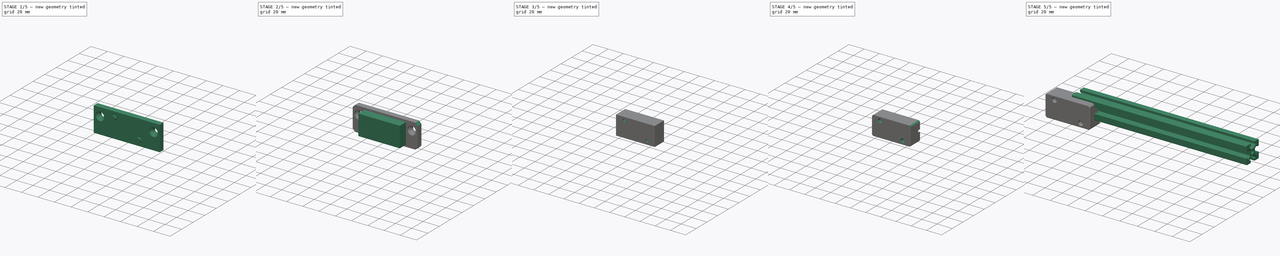
[diagram: build sequence overview — one tinted view per stage of 5, left to right]
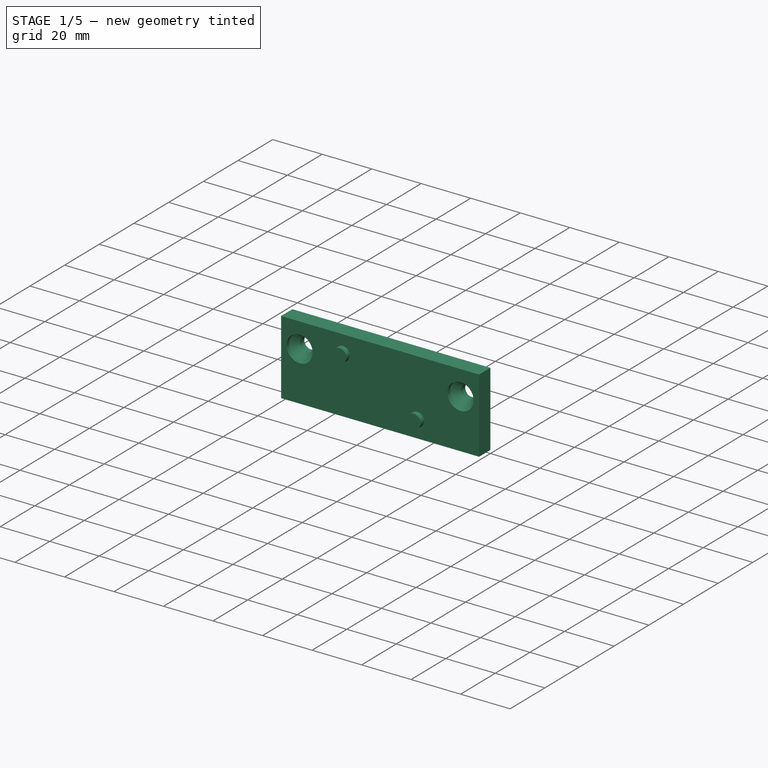
[diagram: stage 1 of 5 — iso view after this stage's code; geometry added in this stage tinted green]
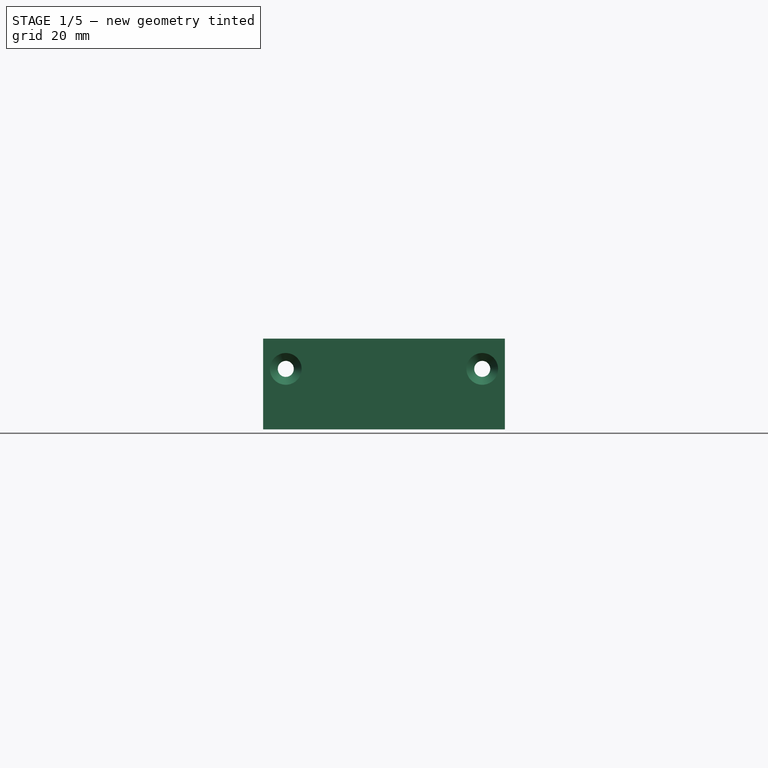
[diagram: stage 1 of 5 — front view after this stage's code; geometry added in this stage tinted green]
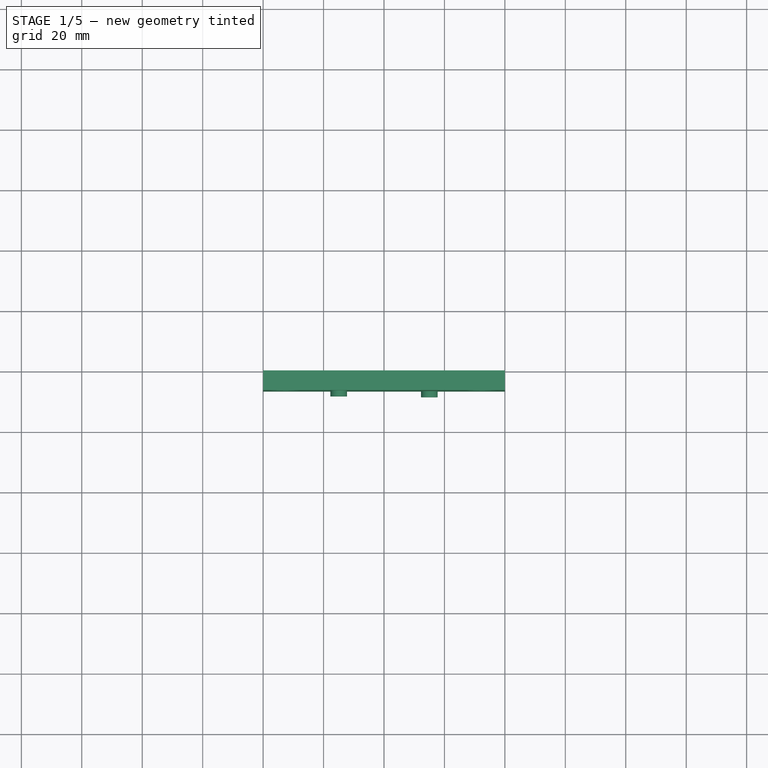
[diagram: stage 1 of 5 — top view after this stage's code; geometry added in this stage tinted green]
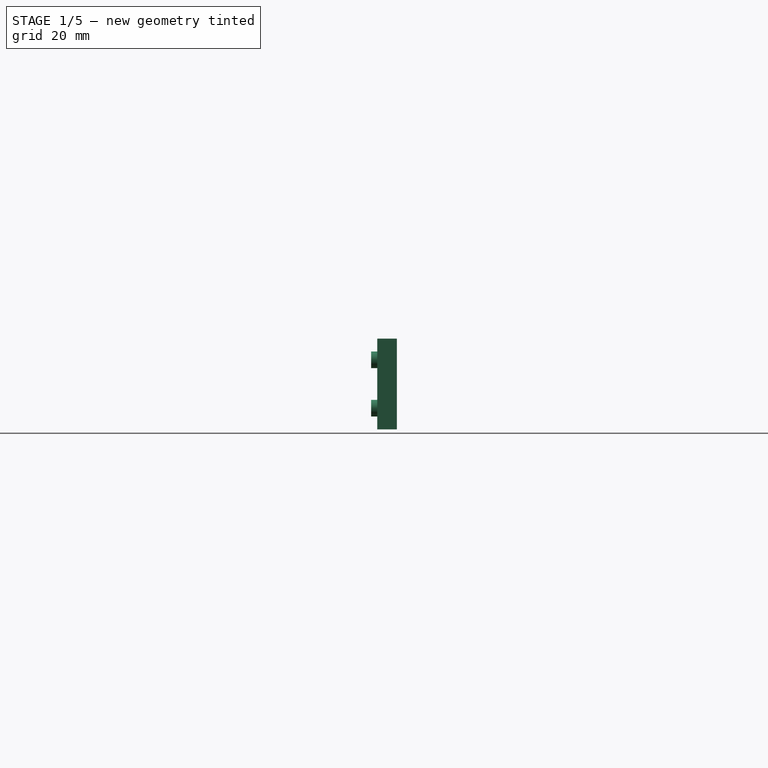
[diagram: stage 1 of 5 — right view after this stage's code; geometry added in this stage tinted green]
FCSTD DOCUMENT  (FreeCAD 0.18R16158 (Git))
Label: lm2596_mount
License: All rights reserved
LicenseURL: http://en.wikipedia.org/wiki/All_rights_reserved
objects: Sketcher::SketchObject×25, PartDesign::Pocket×13, PartDesign::Pad×11, Part::Feature×6, PartDesign::Chamfer×6, PartDesign::Body×4, App::Part×3, PartDesign::ShapeBinder×3, PartDesign::Mirrored×2, PartDesign::PolarPattern×1, PartDesign::FeatureBase×1, PartDesign::Hole×1
note: 98 computed .brp shape members not serialized (recipe doc carries the construction recipe); baked Part::Feature solids carry a one-line shape summary decoded from their .brp

FEATURE [PartDesign::Body] Body001  label="2020_bottom"
  BaseFeature = -> Body
  Group = -> [Clone]
  Origin = -> Origin002
  Placement = pos=(-100,0,-76) rot=(0,0,1;0rad)
  Tip = -> Clone
FEATURE [App::Part] Part  label="3018"
  Group = -> [Body,Body001]
  Origin = -> Origin
FEATURE [Part::Feature] Part__Feature  label="Board v5"
  Placement = pos=(21.5,-9.73272,-11.3327) rot=(1,0,0;1.5708rad)
  shape: bbox 43 x 21 x 1.7 mm, 395 faces (baked)
FEATURE [Part::Feature] Part__Feature001  label="Trimpot 3296W v1"
  Placement = pos=(6.96,7.27228,-9.73272) rot=(0,0,1;3.14159rad)
  shape: bbox 9.53 x 4.83 x 14.15 mm, 96 faces (baked)
FEATURE [Part::Feature] Part__Feature002  label="CDRH127_470M v1"
  Placement = pos=(5.645,-2.88272,-9.74272) rot=(0,0,-1;1.5708rad)
  shape: bbox 12.31 x 12.77 x 7.426 mm, 258 faces, 6 solids (baked)
FEATURE [Part::Feature] Part__Feature003  label="CAPSMD220-35 v1"
  Placement = pos=(17.2399,1.02456,-9.73272) rot=(0,0,1;1.5708rad)
  shape: bbox 8.659 x 9 x 39.03 mm, 183 faces (baked)
FEATURE [Part::Feature] Part__Feature004  label="CAPSMD100-50 v1"
  Placement = pos=(-16.85,0.747284,-9.73272) rot=(0,0,1;1.5708rad)
  shape: bbox 8.659 x 9 x 39.03 mm, 169 faces (baked)
FEATURE [Part::Feature] Part__Feature005  label="TO-263BA v2"
  Placement = pos=(-10.4,-3.43272,-9.73272) rot=(0,0,1;0rad)
  shape: bbox 10.65 x 15.86 x 4.815 mm, 299 faces, 7 solids (baked)
FEATURE [App::Part] LM2596_DC_DC_StepDown_Converter_v1  label="LM2596 module"
  Group = -> [Part__Feature,Part__Feature001,Part__Feature002,Part__Feature003,Part__Feature004,Part__Feature005]
  Origin = -> Origin003
  Placement = pos=(0,-29.88,-5.77) rot=(1,0,0;1.5708rad)
FEATURE [Sketcher::SketchObject] Sketch003
  MapMode = 5
  Placement = pos=(0,0,0) rot=(1,0,0;1.5708rad)
  Support = -> [XZ_Plane005]
  sketch-geometry (4):
    g0: LineSegment StartX=-40 StartY=10 StartZ=0 EndX=40 EndY=10 EndZ=0
    g1: LineSegment StartX=40 StartY=10 StartZ=0 EndX=40 EndY=-20 EndZ=0
    g2: LineSegment StartX=40 StartY=-20 StartZ=0 EndX=-40 EndY=-20 EndZ=0
    g3: LineSegment StartX=-40 StartY=-20 StartZ=0 EndX=-40 EndY=10 EndZ=0
  constraints (11):
    c: Coincident(g0,g1)
    c: Coincident(g1,g2)
    c: Coincident(g2,g3)
    c: Coincident(g3,g0)
    c: Horizontal(g2)
    c: Vertical(g3)
    c: Symmetric(g0,g0,g-2)
    c: DistanceX(g0,g0) = 80
    c: DistanceY(g-1,g0) = 10
    c: DistanceY(g1,g1) = 30
    c: Vertical(g1)
FEATURE [PartDesign::Pad] Pad001
  Length = 6.5
  Length2 = 100
  Placement = pos=(0,0,0) rot=(1,0,0;1.5708rad)
  Profile = -> Sketch003
  Refine = true
  Type = 0
FEATURE [Sketcher::SketchObject] Sketch004
  ExternalGeometry = -> [Pad001]
  MapMode = 5
  Placement = pos=(0,-6.5,4.3e-15) rot=(1,0,0;1.5708rad)
  Support = -> [Pad001]
  sketch-geometry (1):
    g0: Circle CenterX=-32.5 CenterY=0 CenterZ=0 NormalX=0 NormalY=0 NormalZ=1 AngleXU=0 Radius=5.25
  constraints (3):
    c: PointOnObject(g0,g-1)
    c: Diameter(g0) = 10.5
    c: DistanceX(g-3,g0) = 7.5
FEATURE [PartDesign::Pocket] Pocket002
  BaseFeature = -> Pad001
  Length = 1.5
  Length2 = 100
  Placement = pos=(0,0,0) rot=(1,0,0;1.5708rad)
  Profile = -> Sketch004
  Refine = true
  Type = 0
FEATURE [PartDesign::Mirrored] Mirrored
  BaseFeature = -> Pocket002
  MirrorPlane = -> Sketch004 [V_Axis]
  Originals = -> [Pocket002]
  Placement = pos=(0,0,0) rot=(1,0,0;1.5708rad)
  Refine = true
FEATURE [Sketcher::SketchObject] Sketch005
  ExternalGeometry = -> [Mirrored]
  MapMode = 5
  Placement = pos=(0,-5,6.1e-15) rot=(1,0,0;1.5708rad)
  Support = -> [Mirrored]
  sketch-geometry (1):
    g0: Circle CenterX=-32.5 CenterY=0 CenterZ=0 NormalX=0 NormalY=0 NormalZ=1 AngleXU=0 Radius=2.5
  constraints (2):
    c: Coincident(g0,g-3)
    c: Diameter(g0) = 5
FEATURE [PartDesign::Hole] Hole
  BaseFeature = -> Mirrored
  Depth = 25
  DepthType = 1
  Diameter = 5.3
  DrillPoint = 1
  DrillPointAngle = 118
  HoleCutCountersinkAngle = 90
  HoleCutDepth = 0
  HoleCutDiameter = 10.5
  HoleCutType = 2
  ModelActualThread = false
  Placement = pos=(0,0,0) rot=(1,0,0;1.5708rad)
  Profile = -> Sketch005
  Refine = true
  Tapered = false
  TaperedAngle = 90
  ThreadAngle = 0
  ThreadClass = 0
  ThreadCutOffInner = 0
  ThreadCutOffOuter = 0
  ThreadDirection = 0
  ThreadFit = 0
  ThreadPitch = 0
  ThreadSize = 0
  ThreadType = 0
  Threaded = false
FEATURE [PartDesign::Mirrored] Mirrored001
  BaseFeature = -> Hole
  MirrorPlane = -> Sketch005 [V_Axis]
  Originals = -> [Hole]
  Placement = pos=(0,0,0) rot=(1,0,0;1.5708rad)
  Refine = true
FEATURE [PartDesign::ShapeBinder] ShapeBinder
  Placement = pos=(0,-19.88,-5.77) rot=(1,0,0;1.5708rad)
  Support = -> [Part__Feature]
  TraceSupport = true
FEATURE [Sketcher::SketchObject] Sketch006
  ExternalGeometry = -> [ShapeBinder]
  MapMode = 5
  Placement = pos=(0,-6.5,1.01e-14) rot=(1,0,0;1.5708rad)
  Support = -> [Mirrored001]
  sketch-geometry (1):
    g0: Circle CenterX=-15 CenterY=2.99728 CenterZ=0 NormalX=0 NormalY=0 NormalZ=1 AngleXU=0 Radius=2.75
  constraints (2):
    c: Coincident(g0,g-3)
    c: Diameter(g0) = 5.5
FEATURE [PartDesign::Pad] Pad002
  BaseFeature = -> Mirrored001
  Length = 10
  Length2 = 100
  Placement = pos=(0,0,0) rot=(1,0,0;1.5708rad)
  Profile = -> Sketch006
  Refine = true
  Type = 3
  UpToFace = -> ShapeBinder [Face1]
FEATURE [Sketcher::SketchObject] Sketch007
  ExternalGeometry = -> [ShapeBinder,Pad002]
  MapMode = 5
  Placement = pos=(0,-6.5,1.3e-14) rot=(1,0,0;1.5708rad)
  Support = -> [Pad002]
  sketch-geometry (1):
    g0: Circle CenterX=15 CenterY=-13.0027 CenterZ=0 NormalX=0 NormalY=0 NormalZ=1 AngleXU=0 Radius=2.75
  constraints (2):
    c: Coincident(g0,g-3)
    c: Equal(g-4,g0)
FEATURE [PartDesign::Pad] Pad003
  BaseFeature = -> Pad002
  Length = 10
  Length2 = 100
  Placement = pos=(0,0,0) rot=(1,0,0;1.5708rad)
  Profile = -> Sketch007
  Refine = true
  Type = 3
  UpToFace = -> Pad002 [Face14]
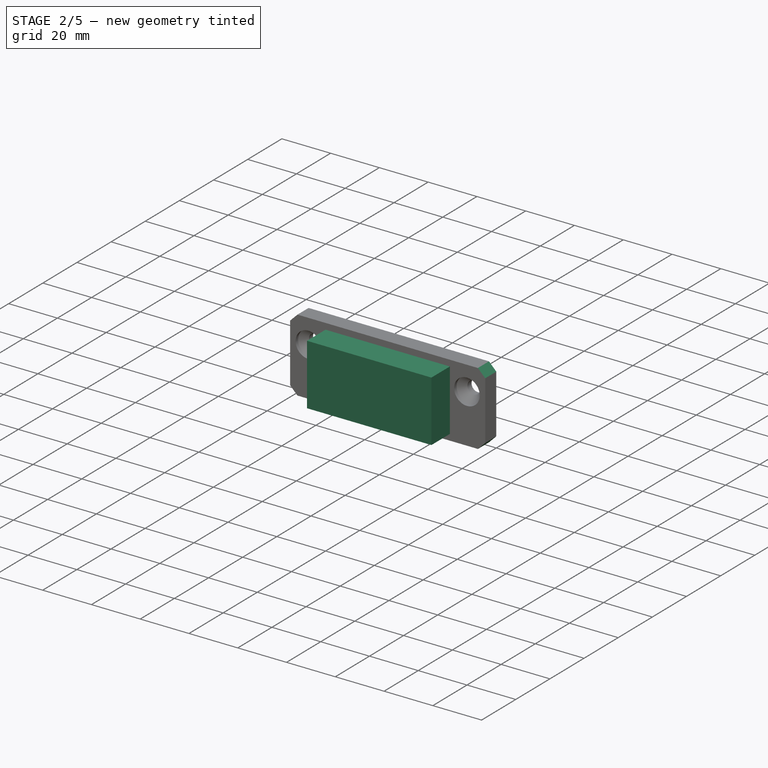
[diagram: stage 2 of 5 — iso view after this stage's code; geometry added in this stage tinted green]
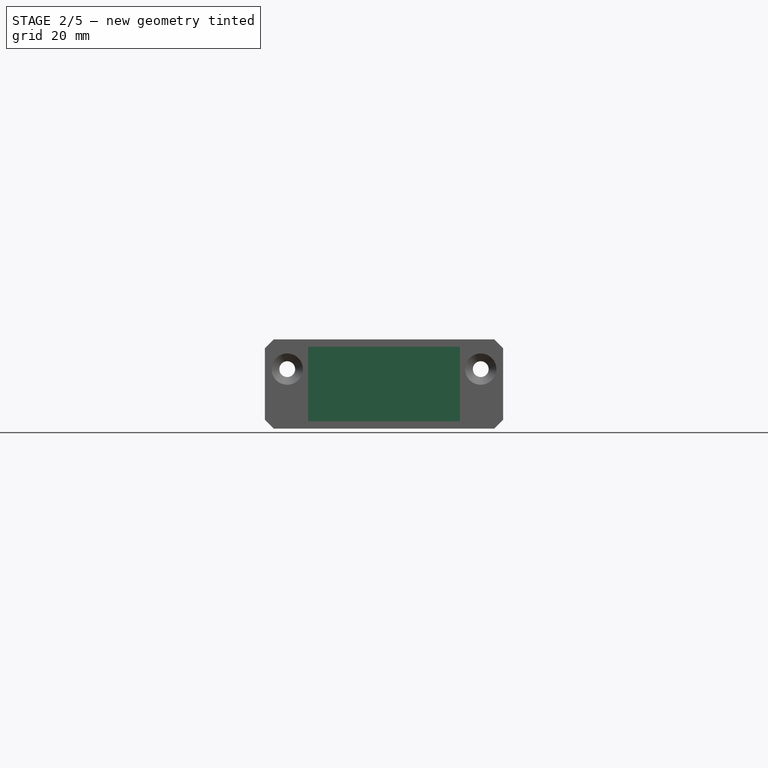
[diagram: stage 2 of 5 — front view after this stage's code; geometry added in this stage tinted green]
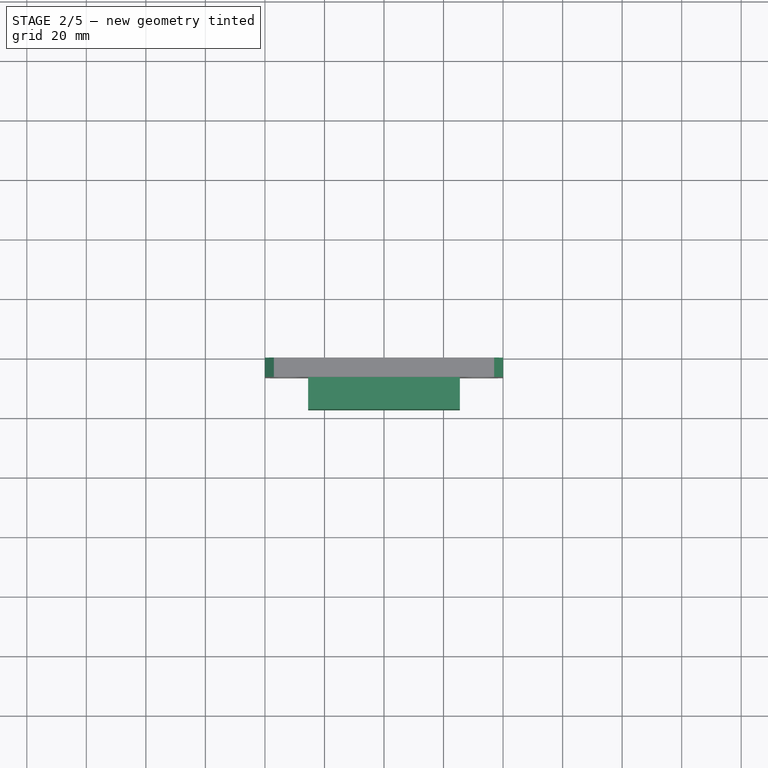
[diagram: stage 2 of 5 — top view after this stage's code; geometry added in this stage tinted green]
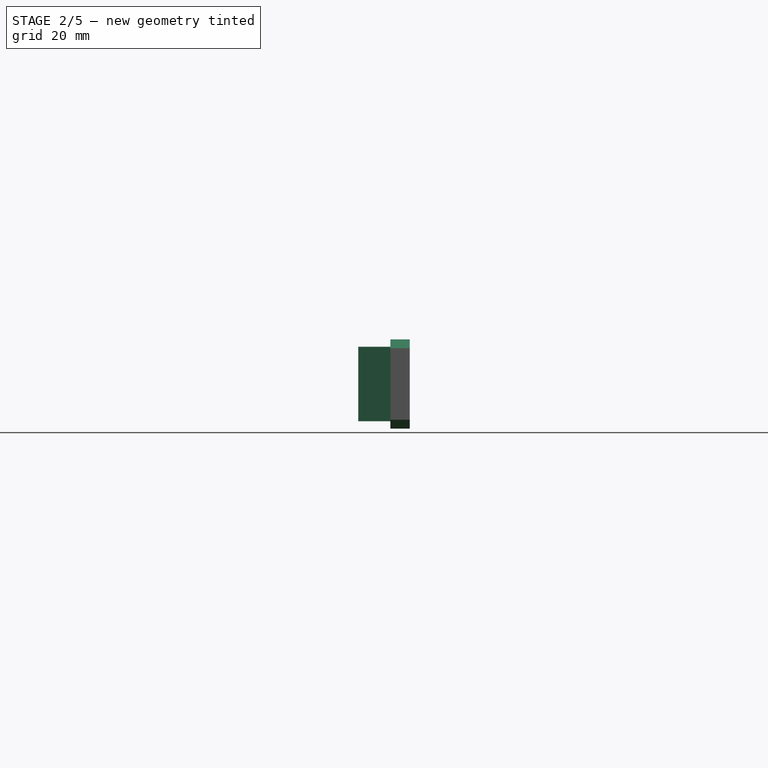
[diagram: stage 2 of 5 — right view after this stage's code; geometry added in this stage tinted green]
FEATURE [Sketcher::SketchObject] Sketch008
  ExternalGeometry = -> [Pad003]
  MapMode = 5
  Placement = pos=(0,-8.49728,-1.9e-15) rot=(1,0,0;1.5708rad)
  Support = -> [Pad003]
  sketch-geometry (1):
    g0: Circle CenterX=-15 CenterY=2.99728 CenterZ=0 NormalX=0 NormalY=0 NormalZ=1 AngleXU=0 Radius=1.65
  constraints (2):
    c: Coincident(g0,g-3)
    c: Diameter(g0) = 3.3
FEATURE [PartDesign::Pocket] Pocket003
  BaseFeature = -> Pad003
  Length = 5
  Length2 = 100
  Placement = pos=(0,0,0) rot=(1,0,0;1.5708rad)
  Profile = -> Sketch008
  Refine = true
  Type = 1
FEATURE [Sketcher::SketchObject] Sketch009
  ExternalGeometry = -> [Pocket003]
  MapMode = 5
  Placement = pos=(0,-8.49728,1.9e-15) rot=(1,0,0;1.5708rad)
  Support = -> [Pocket003]
  sketch-geometry (1):
    g0: Circle CenterX=15 CenterY=-13.0027 CenterZ=0 NormalX=0 NormalY=0 NormalZ=1 AngleXU=0 Radius=1.65
  constraints (2):
    c: Coincident(g0,g-4)
    c: Equal(g0,g-3)
FEATURE [PartDesign::Pocket] Pocket004
  BaseFeature = -> Pocket003
  Length = 5
  Length2 = 100
  Placement = pos=(0,0,0) rot=(1,0,0;1.5708rad)
  Profile = -> Sketch009
  Refine = true
  Type = 1
FEATURE [Sketcher::SketchObject] Sketch010
  ExternalGeometry = -> [Pocket004]
  MapMode = 5
  Placement = pos=(0,0,0) rot=(-1,0,0;1.5708rad)
  Support = -> [Pocket004]
  sketch-geometry (7):
    g0: LineSegment StartX=13.3546 StartY=15.8527 StartZ=0 EndX=11.7091 EndY=13.0027 EndZ=0
    g1: LineSegment StartX=11.7091 StartY=13.0027 StartZ=0 EndX=13.3546 EndY=10.1527 EndZ=0
    g2: LineSegment StartX=13.3546 StartY=10.1527 StartZ=0 EndX=16.6454 EndY=10.1527 EndZ=0
    g3: LineSegment StartX=16.6454 StartY=10.1527 StartZ=0 EndX=18.2909 EndY=13.0027 EndZ=0
    g4: LineSegment StartX=18.2909 StartY=13.0027 StartZ=0 EndX=16.6454 EndY=15.8527 EndZ=0
    g5: LineSegment StartX=16.6454 StartY=15.8527 StartZ=0 EndX=13.3546 EndY=15.8527 EndZ=0
    g6: Circle [constr] CenterX=15 CenterY=13.0027 CenterZ=0 NormalX=0 NormalY=0 NormalZ=1 AngleXU=0 Radius=3.2909
  constraints (16):
    c: Coincident(g0,g1)
    c: Coincident(g1,g2)
    c: Coincident(g2,g3)
    c: Coincident(g3,g4)
    c: Coincident(g4,g5)
    c: Coincident(g5,g0)
    c: Equal(g0, g1-g5) x5
    c: PointOnObject(g0,g6)
    c: PointOnObject(g1,g6)
    c: PointOnObject(g2,g6)
    c: PointOnObject(g3,g6)
    c: PointOnObject(g4,g6)
    c: PointOnObject(g5,g6)
    c: Coincident(g6,g-3)
    c: Horizontal(g5)
    c: DistanceY(g2,g4) = 5.7
FEATURE [PartDesign::Pocket] Pocket005
  BaseFeature = -> Pocket004
  Length = 4
  Length2 = 100
  Placement = pos=(0,0,0) rot=(1,0,0;1.5708rad)
  Profile = -> Sketch010
  Refine = true
  Type = 0
FEATURE [Sketcher::SketchObject] Sketch011
  ExternalGeometry = -> [Pocket005]
  MapMode = 5
  Placement = pos=(0,0,0) rot=(-1,0,0;1.5708rad)
  Support = -> [Pocket005]
  sketch-geometry (7):
    g0: LineSegment StartX=-16.6454 StartY=-0.147284 StartZ=0 EndX=-18.2909 EndY=-2.99728 EndZ=0
    g1: LineSegment StartX=-18.2909 StartY=-2.99728 StartZ=0 EndX=-16.6454 EndY=-5.84728 EndZ=0
    g2: LineSegment StartX=-16.6454 StartY=-5.84728 StartZ=0 EndX=-13.3546 EndY=-5.84728 EndZ=0
    g3: LineSegment StartX=-13.3546 StartY=-5.84728 StartZ=0 EndX=-11.7091 EndY=-2.99728 EndZ=0
    g4: LineSegment StartX=-11.7091 StartY=-2.99728 StartZ=0 EndX=-13.3546 EndY=-0.147284 EndZ=0
    g5: LineSegment StartX=-13.3546 StartY=-0.147284 StartZ=0 EndX=-16.6454 EndY=-0.147284 EndZ=0
    g6: Circle [constr] CenterX=-15 CenterY=-2.99728 CenterZ=0 NormalX=0 NormalY=0 NormalZ=1 AngleXU=0 Radius=3.2909
  constraints (16):
    c: Coincident(g0,g1)
    c: Coincident(g1,g2)
    c: Coincident(g2,g3)
    c: Coincident(g3,g4)
    c: Coincident(g4,g5)
    c: Coincident(g5,g0)
    c: Equal(g0, g1-g5) x5
    c: PointOnObject(g0,g6)
    c: PointOnObject(g1,g6)
    c: PointOnObject(g2,g6)
    c: PointOnObject(g3,g6)
    c: PointOnObject(g4,g6)
    c: PointOnObject(g5,g6)
    c: Coincident(g6,g-3)
    c: Horizontal(g5)
    c: DistanceY(g2,g4) = 5.7
FEATURE [PartDesign::Pocket] Pocket006
  BaseFeature = -> Pocket005
  Length = 4
  Length2 = 100
  Placement = pos=(0,0,0) rot=(1,0,0;1.5708rad)
  Profile = -> Sketch011
  Refine = true
  Type = 0
FEATURE [PartDesign::Chamfer] Chamfer
  Base = -> Pocket006 [Edge14,Edge13,Edge18,Edge17,Edge16,Edge15,Edge21,Edge19,Edge20,Edge22,Edge24,Edge23]
  BaseFeature = -> Pocket006
  Placement = pos=(0,0,0) rot=(1,0,0;1.5708rad)
  Size = 0.5
FEATURE [PartDesign::Chamfer] Chamfer001
  Base = -> Chamfer [Edge32,Edge36,Edge34,Edge31]
  BaseFeature = -> Chamfer
  Placement = pos=(0,0,0) rot=(1,0,0;1.5708rad)
  Size = 3
FEATURE [PartDesign::Body] Body002  label="base"
  Group = -> [Sketch003,Pad001,Sketch004,Pocket002,Mirrored,Sketch005,Hole,Mirrored001,ShapeBinder,Sketch006,Pad002,Sketch007,Pad003,Sketch008,Pocket003,Sketch009,Pocket004,Sketch010,Pocket005,Sketch011,Pocket006,Chamfer,Chamfer001]
  Origin = -> Origin005
  Placement = pos=(0,-10,0) rot=(0,0,1;0rad)
  Tip = -> Chamfer001
FEATURE [PartDesign::ShapeBinder] ShapeBinder001
  Placement = pos=(21.5,-2.04728,-15.5027) rot=(1,0,0;3.14159rad)
  Support = -> [Part__Feature]
  TraceSupport = true
FEATURE [Sketcher::SketchObject] Sketch012
  ExternalGeometry = -> [ShapeBinder001]
  MapMode = 5
  Placement = pos=(0,0,0) rot=(1,0,0;1.5708rad)
  Support = -> [XZ_Plane006]
  sketch-geometry (4):
    g0: LineSegment StartX=-25.5 StartY=7.49728 StartZ=0 EndX=25.5 EndY=7.49728 EndZ=0
    g1: LineSegment StartX=25.5 StartY=7.49728 StartZ=0 EndX=25.5 EndY=-17.5027 EndZ=0
    g2: LineSegment StartX=25.5 StartY=-17.5027 StartZ=0 EndX=-25.5 EndY=-17.5027 EndZ=0
    g3: LineSegment StartX=-25.5 StartY=-17.5027 StartZ=0 EndX=-25.5 EndY=7.49728 EndZ=0
  constraints (12):
    c: Coincident(g0,g1)
    c: Coincident(g1,g2)
    c: Coincident(g2,g3)
    c: Coincident(g3,g0)
    c: Horizontal(g2)
    c: Vertical(g1)
    c: Vertical(g3)
    c: DistanceX(g0,g-3) = 4
    c: DistanceX(g-3,g0) = 4
    c: DistanceY(g-3,g0) = 2
    c: DistanceY(g1,g-4) = 2
    c: Horizontal(g0)
FEATURE [PartDesign::Pad] Pad004
  Length = 17.3
  Length2 = 100
  Placement = pos=(0,0,0) rot=(1,0,0;1.5708rad)
  Profile = -> Sketch012
  Refine = true
  Type = 0
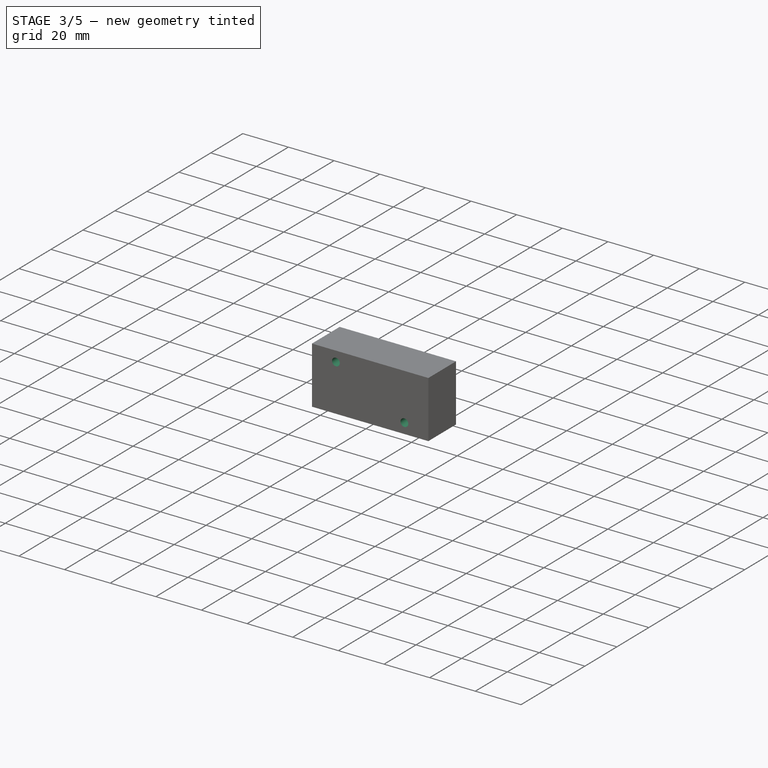
[diagram: stage 3 of 5 — iso view after this stage's code; geometry added in this stage tinted green]
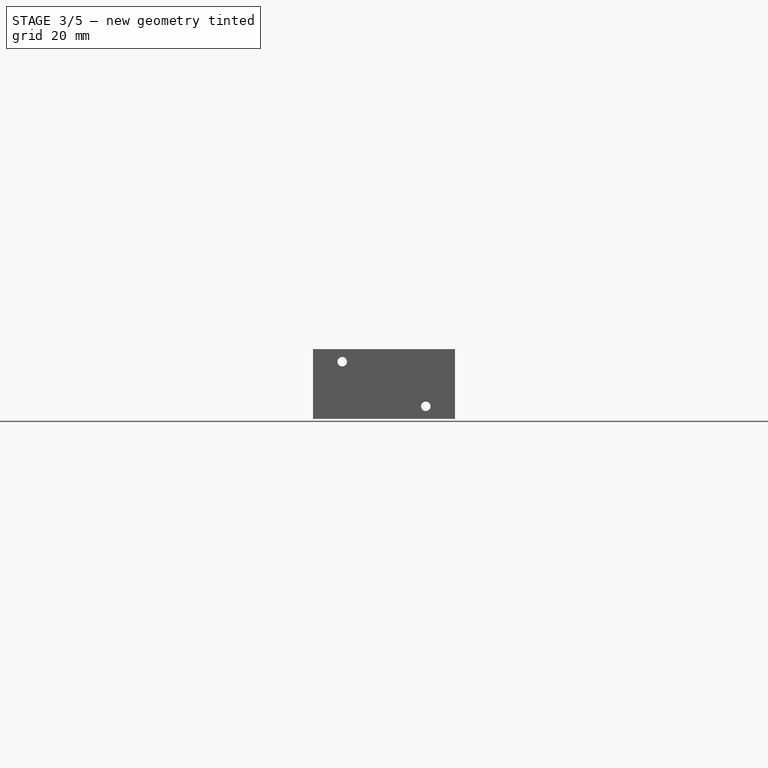
[diagram: stage 3 of 5 — front view after this stage's code; geometry added in this stage tinted green]
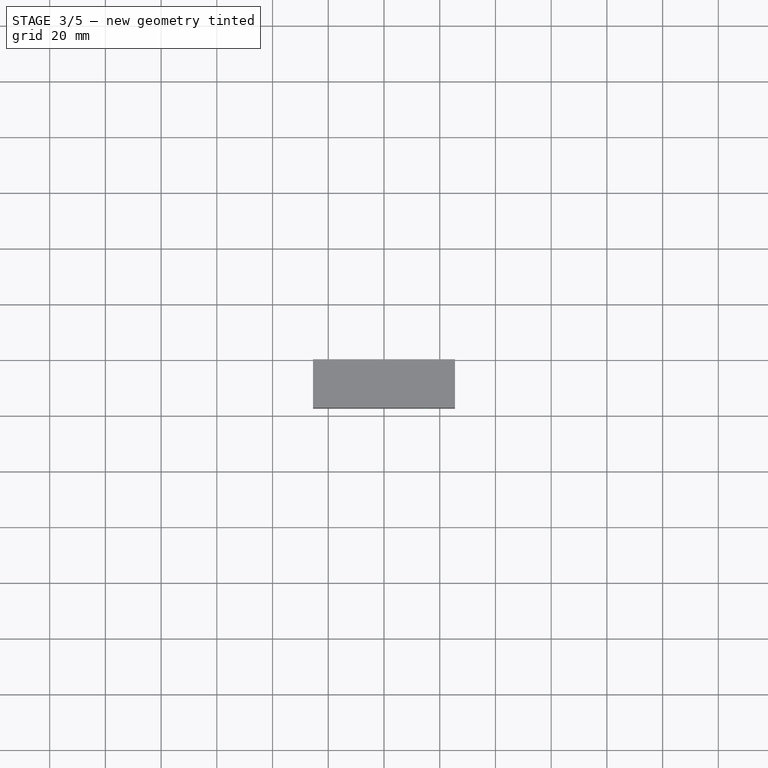
[diagram: stage 3 of 5 — top view after this stage's code; geometry added in this stage tinted green]
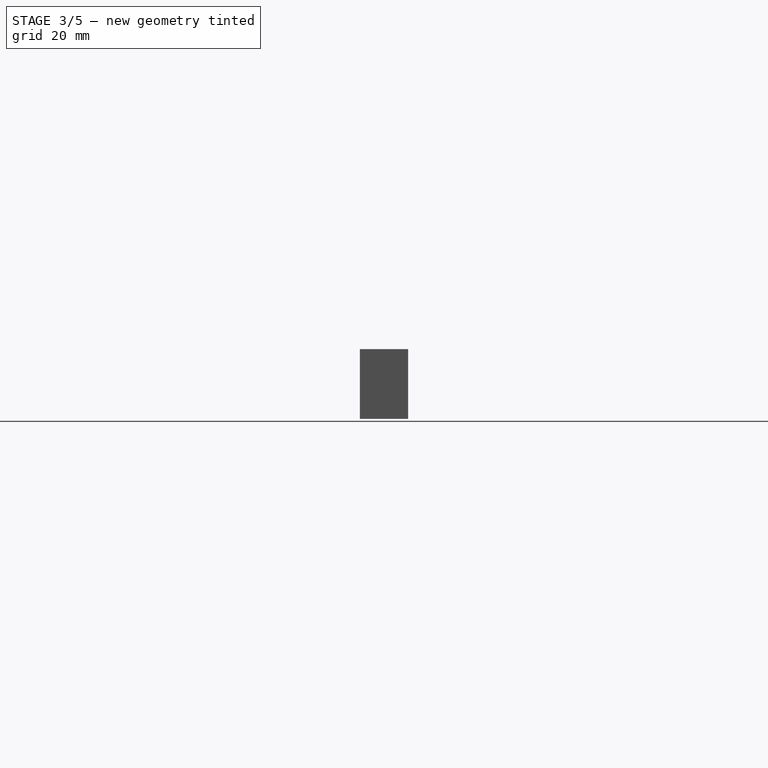
[diagram: stage 3 of 5 — right view after this stage's code; geometry added in this stage tinted green]
FEATURE [Sketcher::SketchObject] Sketch013
  ExternalGeometry = -> [Pad004]
  MapMode = 5
  Placement = pos=(0,0,0) rot=(-1,0,0;1.5708rad)
  Support = -> [Pad004]
  sketch-geometry (4):
    g0: LineSegment StartX=-24.1 StartY=16.1027 StartZ=0 EndX=24.1 EndY=16.1027 EndZ=0
    g1: LineSegment StartX=24.1 StartY=16.1027 StartZ=0 EndX=24.1 EndY=-6.09728 EndZ=0
    g2: LineSegment StartX=24.1 StartY=-6.09728 StartZ=0 EndX=-24.1 EndY=-6.09728 EndZ=0
    g3: LineSegment StartX=-24.1 StartY=-6.09728 StartZ=0 EndX=-24.1 EndY=16.1027 EndZ=0
  constraints (12):
    c: Coincident(g0,g1)
    c: Coincident(g1,g2)
    c: Coincident(g2,g3)
    c: Coincident(g3,g0)
    c: Horizontal(g0)
    c: Horizontal(g2)
    c: Vertical(g1)
    c: Vertical(g3)
    c: DistanceX(g0,g-4) = 1.4
    c: DistanceX(g-6,g0) = 1.4
    c: DistanceY(g0,g-4) = 1.4
    c: DistanceY(g-5,g1) = 1.4
FEATURE [PartDesign::Pocket] Pocket007
  BaseFeature = -> Pad004
  Length = 0
  Length2 = 100
  Offset = -1.4
  Placement = pos=(0,0,0) rot=(1,0,0;1.5708rad)
  Profile = -> Sketch013
  Refine = true
  Type = 3
  UpToFace = -> Pad004 [Face6]
FEATURE [PartDesign::ShapeBinder] ShapeBinder002
  Placement = pos=(0,6.5,0) rot=(0,0,1;0rad)
  Support = -> [Chamfer001]
  TraceSupport = true
FEATURE [Sketcher::SketchObject] Sketch014
  ExternalGeometry = -> [ShapeBinder002,Pocket007]
  MapMode = 5
  Placement = pos=(0,-15.9,1.77e-14) rot=(-1,0,0;1.5708rad)
  Support = -> [Pocket007]
  sketch-geometry (5):
    g0: ArcOfCircle CenterX=15 CenterY=13.0027 CenterZ=0 NormalX=0 NormalY=0 NormalZ=1 AngleXU=0 Radius=2.75 StartAngle=3.14159 EndAngle=6.28319
    g1: LineSegment [constr] StartX=12.25 StartY=13.0027 StartZ=0 EndX=17.75 EndY=13.0027 EndZ=0
    g2: LineSegment StartX=17.75 StartY=13.0027 StartZ=0 EndX=17.75 EndY=16.1027 EndZ=0
    g3: LineSegment StartX=17.75 StartY=16.1027 StartZ=0 EndX=12.25 EndY=16.1027 EndZ=0
    g4: LineSegment StartX=12.25 StartY=16.1027 StartZ=0 EndX=12.25 EndY=13.0027 EndZ=0
  constraints (14):
    c: Coincident(g0,g-3)
    c: Coincident(g1,g2)
    c: Coincident(g2,g3)
    c: Coincident(g3,g4)
    c: Coincident(g4,g1)
    c: Horizontal(g1)
    c: Horizontal(g3)
    c: Vertical(g2)
    c: Vertical(g4)
    c: Coincident(g1,g0)
    c: PointOnObject(g2,g-4)
    c: Coincident(g0,g1)
    c: PointOnObject(g0,g1)
    c: Equal(g-3,g0)
FEATURE [PartDesign::Pad] Pad005
  BaseFeature = -> Pocket007
  Length = 11
  Length2 = 100
  Placement = pos=(0,0,0) rot=(1,0,0;1.5708rad)
  Profile = -> Sketch014
  Refine = true
  Type = 0
FEATURE [Sketcher::SketchObject] Sketch015
  ExternalGeometry = -> [ShapeBinder002,Pad005]
  MapMode = 5
  Placement = pos=(0,-15.9,2.47e-14) rot=(-1,0,0;1.5708rad)
  Support = -> [Pad005]
  sketch-geometry (5):
    g0: ArcOfCircle CenterX=-15 CenterY=-2.99728 CenterZ=0 NormalX=0 NormalY=0 NormalZ=1 AngleXU=0 Radius=2.75 StartAngle=1e-16 EndAngle=3.14159
    g1: LineSegment [constr] StartX=-17.75 StartY=-2.99728 StartZ=0 EndX=-12.25 EndY=-2.99728 EndZ=0
    g2: LineSegment StartX=-12.25 StartY=-2.99728 StartZ=0 EndX=-12.25 EndY=-6.09728 EndZ=0
    g3: LineSegment StartX=-12.25 StartY=-6.09728 StartZ=0 EndX=-17.75 EndY=-6.09728 EndZ=0
    g4: LineSegment StartX=-17.75 StartY=-6.09728 StartZ=0 EndX=-17.75 EndY=-2.99728 EndZ=0
  constraints (14):
    c: Coincident(g0,g-3)
    c: Coincident(g1,g2)
    c: Coincident(g2,g3)
    c: Coincident(g3,g4)
    c: Coincident(g4,g1)
    c: Horizontal(g1)
    c: Horizontal(g3)
    c: Vertical(g2)
    c: Vertical(g4)
    c: Coincident(g1,g0)
    c: PointOnObject(g2,g-4)
    c: Coincident(g0,g2)
    c: PointOnObject(g0,g1)
    c: Equal(g-3,g0)
FEATURE [PartDesign::Pad] Pad006
  BaseFeature = -> Pad005
  Length = 10
  Length2 = 100
  Placement = pos=(0,0,0) rot=(1,0,0;1.5708rad)
  Profile = -> Sketch015
  Refine = true
  Type = 3
  UpToFace = -> Pad005 [Face13]
FEATURE [Sketcher::SketchObject] Sketch016
  ExternalGeometry = -> [Pad006]
  MapMode = 5
  Placement = pos=(0,-4.9,9.2e-15) rot=(-1,0,0;1.5708rad)
  Support = -> [Pad006]
  sketch-geometry (1):
    g0: Circle CenterX=15 CenterY=13.0027 CenterZ=0 NormalX=0 NormalY=0 NormalZ=1 AngleXU=0 Radius=1.7
  constraints (2):
    c: Coincident(g0,g-3)
    c: Diameter(g0) = 3.4
FEATURE [PartDesign::Pocket] Pocket008
  BaseFeature = -> Pad006
  Length = 5
  Length2 = 100
  Placement = pos=(0,0,0) rot=(1,0,0;1.5708rad)
  Profile = -> Sketch016
  Refine = true
  Type = 1
FEATURE [Sketcher::SketchObject] Sketch017
  ExternalGeometry = -> [Pocket008]
  MapMode = 5
  Placement = pos=(0,-4.9,1.14e-14) rot=(-1,0,0;1.5708rad)
  Support = -> [Pocket008]
  sketch-geometry (1):
    g0: Circle CenterX=-15 CenterY=-2.99728 CenterZ=0 NormalX=0 NormalY=0 NormalZ=1 AngleXU=0 Radius=1.7
  constraints (2):
    c: Coincident(g0,g-4)
    c: Equal(g-3,g0)
FEATURE [PartDesign::Pocket] Pocket009
  BaseFeature = -> Pocket008
  Length = 5
  Length2 = 100
  Placement = pos=(0,0,0) rot=(1,0,0;1.5708rad)
  Profile = -> Sketch017
  Refine = true
  Type = 1
FEATURE [Sketcher::SketchObject] Sketch019
  ExternalGeometry = -> [Pocket009]
  MapMode = 5
  Placement = pos=(0,-15.9,4.59e-14) rot=(-1,0,0;1.5708rad)
  Support = -> [Pocket009]
  sketch-geometry (12):
    g0: ArcOfCircle CenterX=-15 CenterY=-2.99728 CenterZ=0 NormalX=0 NormalY=0 NormalZ=1 AngleXU=0 Radius=2.75 StartAngle=0 EndAngle=3.14159
    g1: ArcOfCircle CenterX=-15 CenterY=-2.99728 CenterZ=0 NormalX=0 NormalY=0 NormalZ=1 AngleXU=0 Radius=4 StartAngle=2e-16 EndAngle=3.14159
    g2: LineSegment [constr] StartX=-17.75 StartY=-2.99728 StartZ=0 EndX=-12.25 EndY=-2.99728 EndZ=0
    g3: LineSegment StartX=-12.25 StartY=-2.99728 StartZ=0 EndX=-12.25 EndY=-6.09728 EndZ=0
    g4: LineSegment [constr] StartX=-12.25 StartY=-6.09728 StartZ=0 EndX=-17.75 EndY=-6.09728 EndZ=0
    g5: LineSegment StartX=-17.75 StartY=-6.09728 StartZ=0 EndX=-17.75 EndY=-2.99728 EndZ=0
    g6: LineSegment [constr] StartX=-19 StartY=-2.99728 StartZ=0 EndX=-11 EndY=-2.99728 EndZ=0
    g7: LineSegment StartX=-11 StartY=-2.99728 StartZ=0 EndX=-11 EndY=-6.09728 EndZ=0
    g8: LineSegment [constr] StartX=-11 StartY=-6.09728 StartZ=0 EndX=-19 EndY=-6.09728 EndZ=0
    g9: LineSegment StartX=-19 StartY=-6.09728 StartZ=0 EndX=-19 EndY=-2.99728 EndZ=0
    g10: LineSegment StartX=-19 StartY=-6.09728 StartZ=0 EndX=-17.75 EndY=-6.09728 EndZ=0
    g11: LineSegment StartX=-12.25 StartY=-6.09728 StartZ=0 EndX=-11 EndY=-6.09728 EndZ=0
  constraints (32):
    c: Coincident(g0,g-3)
    c: Coincident(g1,g0)
    c: Coincident(g2,g3)
    c: Coincident(g3,g4)
    c: Coincident(g4,g5)
    c: Coincident(g5,g2)
    c: Horizontal(g2)
    c: Horizontal(g4)
    c: Vertical(g3)
    c: Vertical(g5)
    c: Coincident(g2,g0)
    c: PointOnObject(g3,g-4)
    c: Coincident(g0,g2)
    c: PointOnObject(g0,g2)
    c: Equal(g0,g-3)
    c: Coincident(g6,g7)
    c: Coincident(g7,g8)
    c: Coincident(g8,g9)
    c: Coincident(g9,g6)
    c: Horizontal(g6)
    c: Horizontal(g8)
    c: Vertical(g7)
    c: Vertical(g9)
    c: Coincident(g6,g1)
    c: PointOnObject(g7,g-4)
    c: Coincident(g1,g6)
    c: PointOnObject(g0,g6)
    c: Diameter(g1) = 8
    c: Coincident(g10,g9)
    c: Coincident(g10,g5)
    c: Coincident(g11,g3)
    c: Coincident(g11,g7)
FEATURE [PartDesign::Pad] Pad007
  BaseFeature = -> Pocket009
  Length = 4.2
  Length2 = 100
  Placement = pos=(0,0,0) rot=(1,0,0;1.5708rad)
  Profile = -> Sketch019
  Refine = true
  Type = 0
FEATURE [Sketcher::SketchObject] Sketch020
  ExternalGeometry = -> [Pad007]
  MapMode = 5
  Placement = pos=(0,-15.9,5.3e-14) rot=(-1,0,0;1.5708rad)
  Support = -> [Pad007]
  sketch-geometry (10):
    g0: ArcOfCircle CenterX=15 CenterY=13.0027 CenterZ=0 NormalX=0 NormalY=0 NormalZ=1 AngleXU=0 Radius=2.75 StartAngle=3.14159 EndAngle=6.28319
    g1: ArcOfCircle CenterX=15 CenterY=13.0027 CenterZ=0 NormalX=0 NormalY=0 NormalZ=1 AngleXU=0 Radius=4 StartAngle=3.14159 EndAngle=6.28319
    g2: LineSegment [constr] StartX=12.25 StartY=13.0027 StartZ=0 EndX=17.75 EndY=13.0027 EndZ=0
    g3: LineSegment StartX=17.75 StartY=13.0027 StartZ=0 EndX=17.75 EndY=16.1027 EndZ=0
    g4: LineSegment StartX=12.25 StartY=16.1027 StartZ=0 EndX=12.25 EndY=13.0027 EndZ=0
    g5: LineSegment [constr] StartX=11 StartY=13.0027 StartZ=0 EndX=19 EndY=13.0027 EndZ=0
    g6: LineSegment StartX=19 StartY=13.0027 StartZ=0 EndX=19 EndY=16.1027 EndZ=0
    g7: LineSegment StartX=11 StartY=16.1027 StartZ=0 EndX=11 EndY=13.0027 EndZ=0
    g8: LineSegment StartX=11 StartY=16.1027 StartZ=0 EndX=12.25 EndY=16.1027 EndZ=0
    g9: LineSegment StartX=17.75 StartY=16.1027 StartZ=0 EndX=19 EndY=16.1027 EndZ=0
  constraints (28):
    c: Coincident(g0,g-3)
    c: Coincident(g1,g0)
    c: Coincident(g2,g3)
    c: Coincident(g4,g2)
    c: Horizontal(g2)
    c: Vertical(g3)
    c: Vertical(g4)
    c: Coincident(g2,g0)
    c: PointOnObject(g3,g-5)
    c: Coincident(g5,g6)
    c: Coincident(g7,g5)
    c: Horizontal(g5)
    c: Vertical(g6)
    c: Vertical(g7)
    c: Coincident(g5,g1)
    c: PointOnObject(g6,g-5)
    c: Coincident(g0,g2)
    c: Coincident(g1,g5)
    c: PointOnObject(g0,g2)
    c: PointOnObject(g0,g5)
    c: Equal(g-3,g0)
    c: Equal(g1,g-4)
    c: Coincident(g8,g7)
    c: Coincident(g8,g4)
    c: Horizontal(g8)
    c: Coincident(g9,g3)
    c: Coincident(g9,g6)
    c: PointOnObject(g4,g-5)
FEATURE [PartDesign::Pad] Pad008
  BaseFeature = -> Pad007
  Length = 10
  Length2 = 100
  Placement = pos=(0,0,0) rot=(1,0,0;1.5708rad)
  Profile = -> Sketch020
  Refine = true
  Type = 3
  UpToFace = -> Pad007 [Face15]
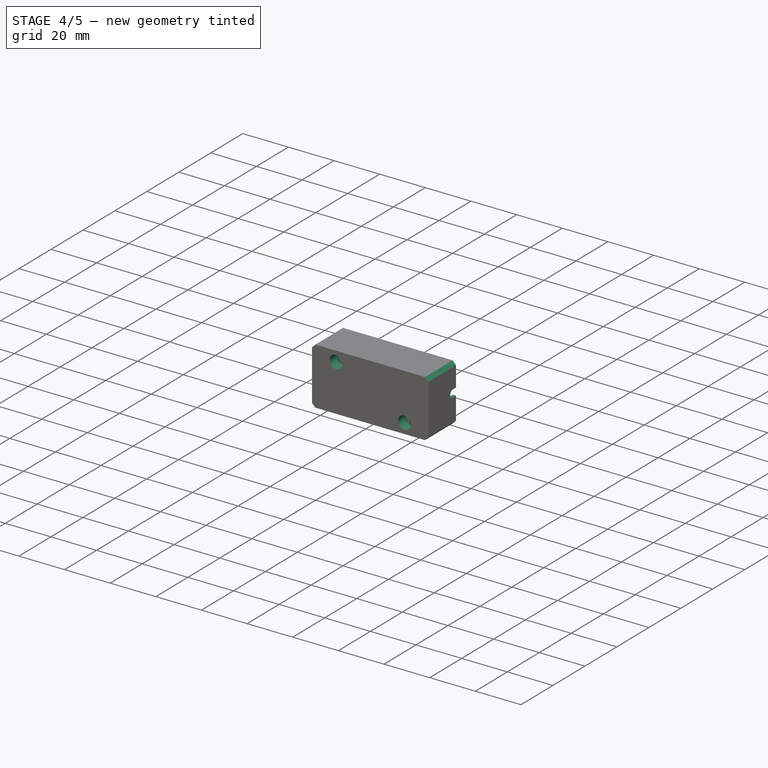
[diagram: stage 4 of 5 — iso view after this stage's code; geometry added in this stage tinted green]
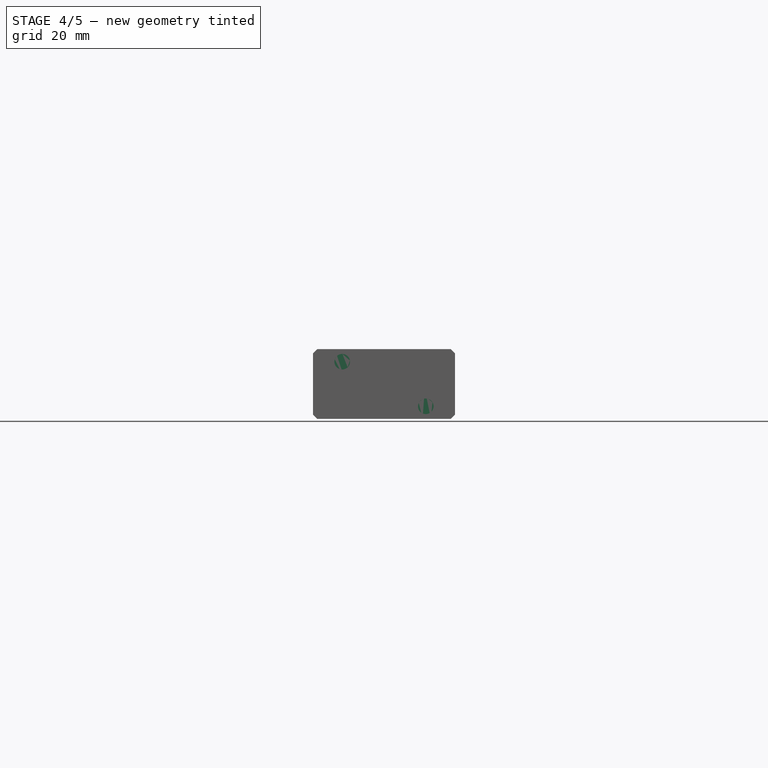
[diagram: stage 4 of 5 — front view after this stage's code; geometry added in this stage tinted green]
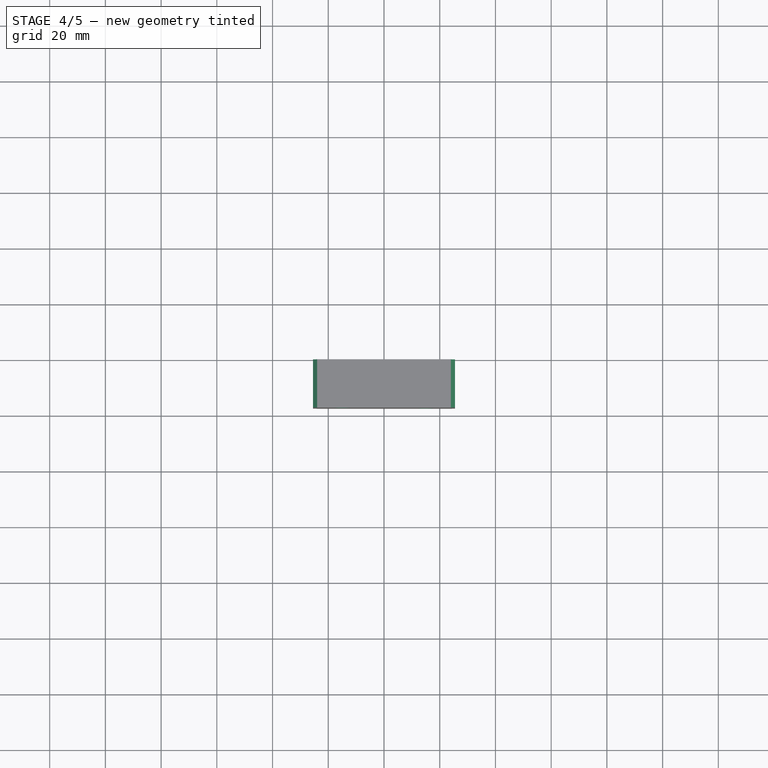
[diagram: stage 4 of 5 — top view after this stage's code; geometry added in this stage tinted green]
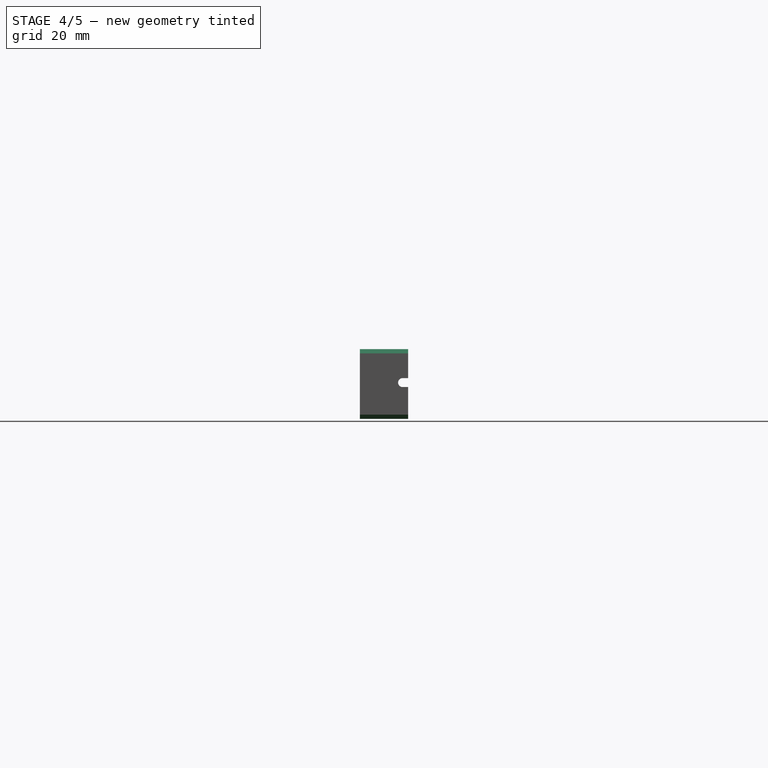
[diagram: stage 4 of 5 — right view after this stage's code; geometry added in this stage tinted green]
FEATURE [Sketcher::SketchObject] Sketch021
  ExternalGeometry = -> [Pad008]
  MapMode = 5
  Placement = pos=(0,-17.3,6.53e-14) rot=(1,0,0;1.5708rad)
  Support = -> [Pad008]
  sketch-geometry (1):
    g0: Circle CenterX=-15 CenterY=2.99728 CenterZ=0 NormalX=0 NormalY=0 NormalZ=1 AngleXU=0 Radius=2.8
  constraints (2):
    c: Coincident(g0,g-3)
    c: Diameter(g0) = 5.6
FEATURE [PartDesign::Pocket] Pocket010
  BaseFeature = -> Pad008
  Length = 4.5
  Length2 = 100
  Placement = pos=(0,0,0) rot=(1,0,0;1.5708rad)
  Profile = -> Sketch021
  Refine = true
  Type = 0
FEATURE [Sketcher::SketchObject] Sketch022
  ExternalGeometry = -> [Pocket010]
  MapMode = 5
  Placement = pos=(0,-17.3,7.3e-14) rot=(1,0,0;1.5708rad)
  Support = -> [Pocket010]
  sketch-geometry (1):
    g0: Circle CenterX=15 CenterY=-13.0027 CenterZ=0 NormalX=0 NormalY=0 NormalZ=1 AngleXU=0 Radius=2.8
  constraints (2):
    c: Coincident(g0,g-4)
    c: Equal(g-3,g0)
FEATURE [PartDesign::Pocket] Pocket011
  BaseFeature = -> Pocket010
  Length = 0
  Length2 = 100
  Placement = pos=(0,0,0) rot=(1,0,0;1.5708rad)
  Profile = -> Sketch022
  Refine = true
  Type = 3
  UpToFace = -> Pocket010 [Face26]
FEATURE [PartDesign::Chamfer] Chamfer002
  Base = -> Pocket011 [Edge55,Edge56,Edge57,Edge73,Edge72,Edge71]
  BaseFeature = -> Pocket011
  Placement = pos=(0,0,0) rot=(1,0,0;1.5708rad)
  Size = 1.24
FEATURE [Sketcher::SketchObject] Sketch023
  ExternalGeometry = -> [Chamfer002]
  MapMode = 5
  Placement = pos=(-5.4e-15,-12.8,5.83e-14) rot=(1,0,0;1.5708rad)
  Support = -> [Chamfer002]
  sketch-geometry (1):
    g0: Circle CenterX=-15 CenterY=2.99728 CenterZ=0 NormalX=0 NormalY=0 NormalZ=1 AngleXU=0 Radius=1.7
  constraints (2):
    c: Coincident(g0,g-3)
    c: Equal(g0,g-3)
FEATURE [PartDesign::Pad] Pad009
  BaseFeature = -> Chamfer002
  Length = 0.2
  Length2 = 100
  Placement = pos=(0,0,0) rot=(1,0,0;1.5708rad)
  Profile = -> Sketch023
  Refine = true
  Reversed = true
  Type = 0
FEATURE [Sketcher::SketchObject] Sketch024
  ExternalGeometry = -> [Pad009]
  MapMode = 5
  Placement = pos=(-5.4e-15,-12.8,6.39e-14) rot=(1,0,0;1.5708rad)
  Support = -> [Pad009]
  sketch-geometry (1):
    g0: Circle CenterX=15 CenterY=-13.0027 CenterZ=0 NormalX=0 NormalY=0 NormalZ=1 AngleXU=0 Radius=1.7
  constraints (2):
    c: Coincident(g0,g-3)
    c: Equal(g0,g-3)
FEATURE [PartDesign::Pad] Pad010
  BaseFeature = -> Pad009
  Length = 0.2
  Length2 = 100
  Placement = pos=(0,0,0) rot=(1,0,0;1.5708rad)
  Profile = -> Sketch024
  Refine = true
  Reversed = true
  Type = 0
FEATURE [Sketcher::SketchObject] Sketch025
  MapMode = 5
  Placement = pos=(25.5,0,0) rot=(0.707107,0,0.707107;3.14159rad)
  Support = -> [Pad010]
  sketch-geometry (5):
    g0: ArcOfCircle CenterX=-4.5 CenterY=2 CenterZ=0 NormalX=0 NormalY=0 NormalZ=1 AngleXU=0 Radius=1.6 StartAngle=0 EndAngle=3.14159
    g1: LineSegment [constr] StartX=-6.1 StartY=2 StartZ=0 EndX=-2.9 EndY=2 EndZ=0
    g2: LineSegment StartX=-2.9 StartY=2 StartZ=0 EndX=-2.9 EndY=0 EndZ=0
    g3: LineSegment StartX=-2.9 StartY=0 StartZ=0 EndX=-6.1 EndY=0 EndZ=0
    g4: LineSegment StartX=-6.1 StartY=0 StartZ=0 EndX=-6.1 EndY=2 EndZ=0
  constraints (15):
    c: Coincident(g1,g2)
    c: Coincident(g2,g3)
    c: Coincident(g3,g4)
    c: Coincident(g4,g1)
    c: Horizontal(g1)
    c: Horizontal(g3)
    c: Vertical(g2)
    c: Vertical(g4)
    c: Coincident(g1,g0)
    c: PointOnObject(g2,g-1)
    c: Coincident(g0,g1)
    c: PointOnObject(g0,g1)
    c: Diameter(g0) = 3.2
    c: DistanceY(g2,g2) = 2
    c: DistanceX(g0,g-1) = 4.5
FEATURE [PartDesign::Pocket] Pocket012
  BaseFeature = -> Pad010
  Length = 5
  Length2 = 100
  Placement = pos=(0,0,0) rot=(1,0,0;1.5708rad)
  Profile = -> Sketch025
  Refine = true
  Type = 1
FEATURE [PartDesign::Chamfer] Chamfer003
  Base = -> Pocket012 [Edge11,Edge7,Edge44,Edge58,Edge88,Edge97,Edge90,Edge95]
  BaseFeature = -> Pocket012
  Placement = pos=(0,0,0) rot=(1,0,0;1.5708rad)
  Size = 1.5
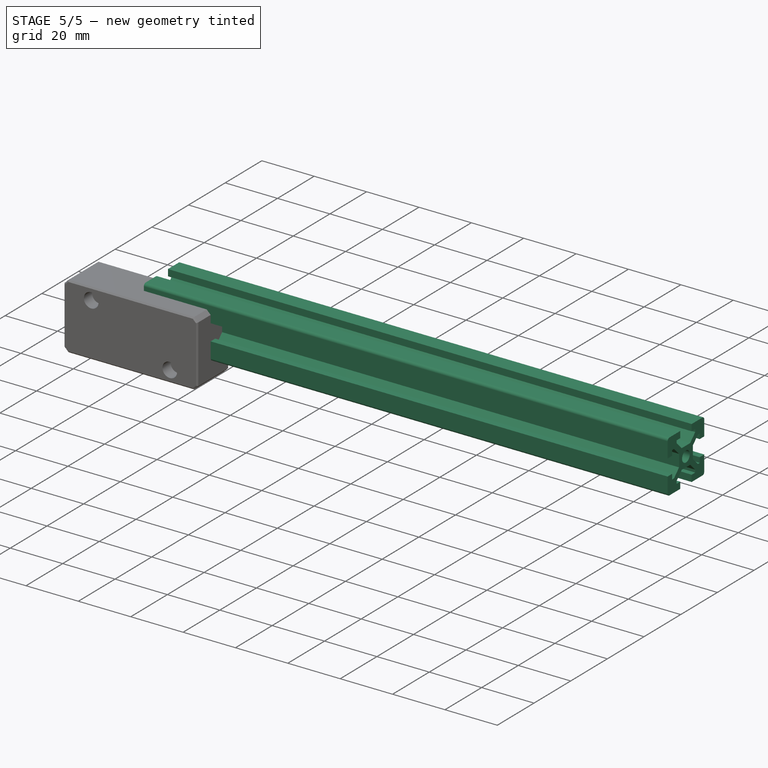
[diagram: stage 5 of 5 — iso view after this stage's code; geometry added in this stage tinted green]
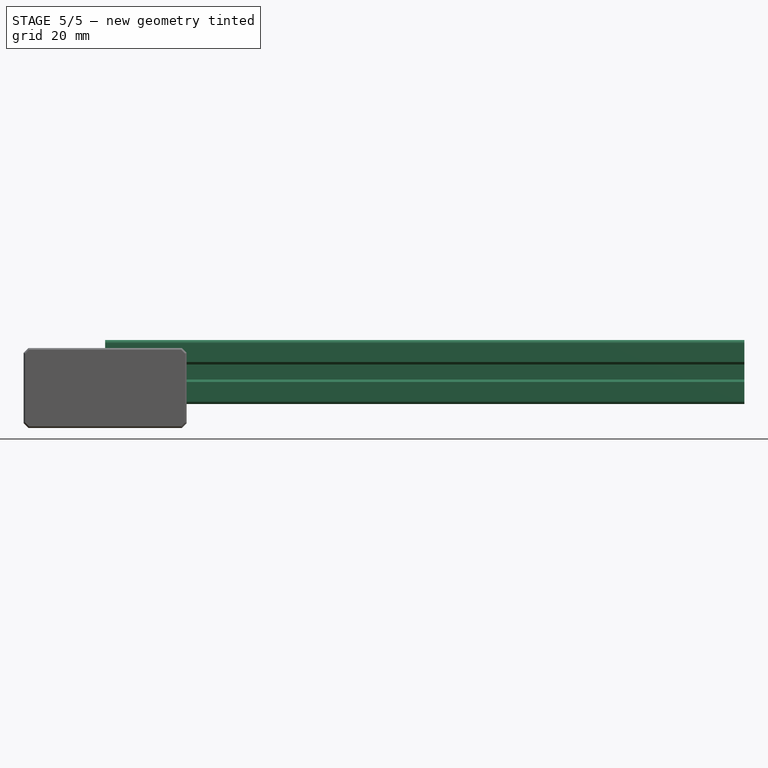
[diagram: stage 5 of 5 — front view after this stage's code; geometry added in this stage tinted green]
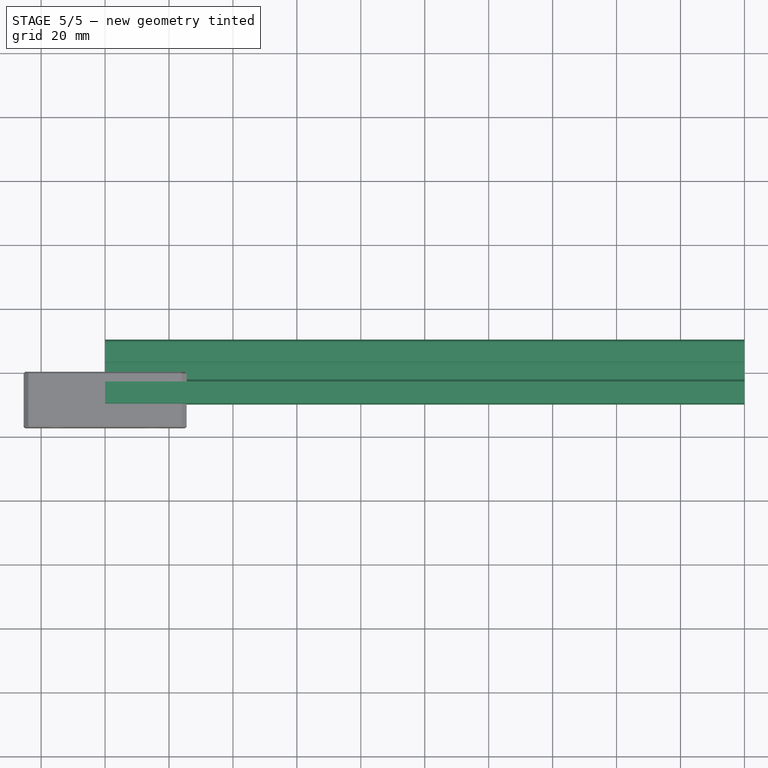
[diagram: stage 5 of 5 — top view after this stage's code; geometry added in this stage tinted green]
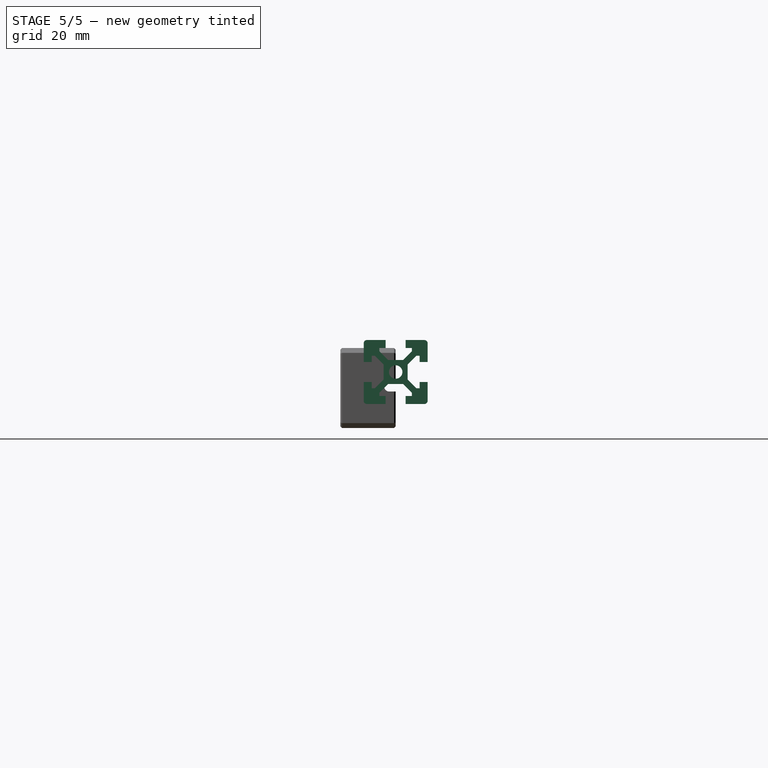
[diagram: stage 5 of 5 — right view after this stage's code; geometry added in this stage tinted green]
FEATURE [Sketcher::SketchObject] Sketch
  MapMode = 5
  Placement = pos=(0,0,0) rot=(0.57735,0.57735,0.57735;2.0944rad)
  Support = -> [YZ_Plane001]
  sketch-geometry (8):
    g0: LineSegment StartX=-9 StartY=10 StartZ=0 EndX=9 EndY=10 EndZ=0
    g1: LineSegment StartX=10 StartY=9 StartZ=0 EndX=10 EndY=-9 EndZ=0
    g2: LineSegment StartX=9 StartY=-10 StartZ=0 EndX=-9 EndY=-10 EndZ=0
    g3: LineSegment StartX=-10 StartY=-9 StartZ=0 EndX=-10 EndY=9 EndZ=0
    g4: ArcOfCircle CenterX=9 CenterY=9 CenterZ=0 NormalX=0 NormalY=0 NormalZ=1 AngleXU=0 Radius=1 StartAngle=5e-16 EndAngle=1.5708
    g5: ArcOfCircle CenterX=-9 CenterY=9 CenterZ=0 NormalX=0 NormalY=0 NormalZ=1 AngleXU=0 Radius=1 StartAngle=1.5708 EndAngle=3.14159
    g6: ArcOfCircle CenterX=-9 CenterY=-9 CenterZ=0 NormalX=0 NormalY=0 NormalZ=1 AngleXU=0 Radius=1 StartAngle=3.14159 EndAngle=4.71239
    g7: ArcOfCircle CenterX=9 CenterY=-9 CenterZ=0 NormalX=0 NormalY=0 NormalZ=1 AngleXU=0 Radius=1 StartAngle=4.71239 EndAngle=6.28319
  constraints (18):
    c: Horizontal(g0)
    c: Horizontal(g2)
    c: Vertical(g1)
    c: Vertical(g3)
    c: Tangent(g0,g4) = 1.5708
    c: Tangent(g1,g4) = 1.5708
    c: Tangent(g3,g5) = 1.5708
    c: Tangent(g0,g5) = 1.5708
    c: Tangent(g3,g6) = 1.5708
    c: Tangent(g2,g6) = 1.5708
    c: Tangent(g2,g7) = 1.5708
    c: Tangent(g1,g7) = 1.5708
    c: Equal(g7,g6)
    c: Equal(g0,g1)
    c: Symmetric(g4,g5,g-2)
    c: Symmetric(g4,g7,g-1)
    c: Radius(g4) = 1
    c: DistanceX(g3,g1) = 20
FEATURE [PartDesign::Pad] Pad
  Length = 200
  Length2 = 100
  Placement = pos=(0,0,0) rot=(0.57735,0.57735,0.57735;2.0944rad)
  Profile = -> Sketch
  Refine = true
  Type = 0
FEATURE [Sketcher::SketchObject] Sketch001
  ExternalGeometry = -> [Pad]
  MapMode = 5
  Placement = pos=(200,-4.4e-14,4.4e-14) rot=(0.57735,0.57735,0.57735;2.0944rad)
  Support = -> [Pad]
  sketch-geometry (14):
    g0: LineSegment StartX=-3.125 StartY=10 StartZ=0 EndX=3.125 EndY=10 EndZ=0
    g1: LineSegment StartX=3.125 StartY=10 StartZ=0 EndX=3.125 EndY=7.5 EndZ=0
    g2: LineSegment StartX=2.33579 StartY=3.75 StartZ=0 EndX=-2.33579 EndY=3.75 EndZ=0
    g3: LineSegment StartX=-3.125 StartY=7.5 StartZ=0 EndX=-3.125 EndY=10 EndZ=0
    g4: LineSegment StartX=3.125 StartY=7.5 StartZ=0 EndX=5.08579 EndY=7.5 EndZ=0
    g5: LineSegment StartX=5.08579 StartY=7.5 StartZ=0 EndX=5.08579 EndY=6.5 EndZ=0
    g6: LineSegment StartX=5.08579 StartY=6.5 StartZ=0 EndX=2.33579 EndY=3.75 EndZ=0
    g7: LineSegment StartX=-5.08579 StartY=7.5 StartZ=0 EndX=-5.08579 EndY=6.5 EndZ=0
    g8: LineSegment StartX=-5.08579 StartY=6.5 StartZ=0 EndX=-2.33579 EndY=3.75 EndZ=0
    g9: LineSegment [constr] StartX=-3.125 StartY=7.5 StartZ=0 EndX=3.125 EndY=7.5 EndZ=0
    g10: LineSegment [constr] StartX=0 StartY=0 StartZ=0 EndX=-9 EndY=9 EndZ=0
    g11: LineSegment [constr] StartX=0 StartY=0 StartZ=0 EndX=9 EndY=9 EndZ=0
    g12: LineSegment StartX=-3.125 StartY=7.5 StartZ=0 EndX=-5.08579 EndY=7.5 EndZ=0
    g13: LineSegment [constr] StartX=5.08579 StartY=6.5 StartZ=0 EndX=5.79289 EndY=5.79289 EndZ=0
  constraints (37):
    c: Coincident(g0,g1)
    c: Coincident(g3,g0)
    c: Horizontal(g0)
    c: Vertical(g1)
    c: Vertical(g3)
    c: PointOnObject(g0,g-3)
    c: Horizontal(g4)
    c: Coincident(g5,g4)
    c: Vertical(g5)
    c: Coincident(g6,g5)
    c: Coincident(g6,g2)
    c: Vertical(g7)
    c: Coincident(g8,g7)
    c: Coincident(g8,g2)
    c: Coincident(g1,g4)
    c: Coincident(g9,g1)
    c: DistanceX(g0,g0) = 6.25
    c: DistanceY(g2,g-3) = 6.25
    c: DistanceY(g1,g1) = 2.5
    c: Symmetric(g2,g2,g-2)
    c: Symmetric(g1,g3,g-2)
    c: Equal(g5,g7)
    c: Coincident(g10,g-1)
    c: Coincident(g10,g-4)
    c: Coincident(g11,g-1)
    c: Coincident(g11,g-5)
    c: Parallel(g6,g11)
    c: Coincident(g12,g3)
    c: Coincident(g12,g7)
    c: Horizontal(g12)
    c: Parallel(g8,g10)
    c: Coincident(g13,g5)
    c: PointOnObject(g13,g11)
    c: Perpendicular(g6,g13)
    c: Distance(g13) = 1
    c: DistanceY(g7,g7) = 1
    c: Coincident(g9,g3)
FEATURE [PartDesign::Pocket] Pocket
  BaseFeature = -> Pad
  Length = 5
  Length2 = 100
  Placement = pos=(0,0,0) rot=(0.57735,0.57735,0.57735;2.0944rad)
  Profile = -> Sketch001
  Refine = true
  Type = 1
FEATURE [PartDesign::PolarPattern] PolarPattern
  Angle = 360
  Axis = -> Sketch001 [N_Axis]
  BaseFeature = -> Pocket
  Occurrences = 4
  Originals = -> [Pocket]
  Placement = pos=(0,0,0) rot=(0.57735,0.57735,0.57735;2.0944rad)
  Refine = true
FEATURE [Sketcher::SketchObject] Sketch002
  MapMode = 5
  Placement = pos=(200,-4.4e-14,4.4e-14) rot=(0.57735,0.57735,0.57735;2.0944rad)
  Support = -> [PolarPattern]
  sketch-geometry (1):
    g0: Circle CenterX=0 CenterY=0 CenterZ=0 NormalX=0 NormalY=0 NormalZ=1 AngleXU=0 Radius=2.1
  constraints (2):
    c: Coincident(g0,g-1)
    c: Diameter(g0) = 4.2
FEATURE [PartDesign::Pocket] Pocket001
  BaseFeature = -> PolarPattern
  Length = 5
  Length2 = 100
  Placement = pos=(0,0,0) rot=(0.57735,0.57735,0.57735;2.0944rad)
  Profile = -> Sketch002
  Refine = true
  Type = 1
FEATURE [PartDesign::Body] Body  label="2020_top"
  Group = -> [Sketch,Pad,Sketch001,Pocket,PolarPattern,Sketch002,Pocket001]
  Origin = -> Origin001
  Placement = pos=(-100,0,0) rot=(0,0,1;0rad)
  Tip = -> Pocket001
FEATURE [PartDesign::FeatureBase] Clone
  BaseFeature = -> Body
FEATURE [PartDesign::Chamfer] Chamfer004
  Base = -> Chamfer003 [Edge100,Edge97,Edge92,Edge134,Edge136,Edge135,Edge104,Edge102]
  BaseFeature = -> Chamfer003
  Placement = pos=(0,0,0) rot=(1,0,0;1.5708rad)
  Size = 0.5
FEATURE [PartDesign::Chamfer] Chamfer005
  Base = -> Chamfer004 [Edge35,Edge33,Edge31,Edge26,Edge6,Edge3,Edge10,Edge16,Edge18,Edge20]
  BaseFeature = -> Chamfer004
  Placement = pos=(0,0,0) rot=(1,0,0;1.5708rad)
  Size = 0.5
FEATURE [PartDesign::Body] Body003  label="cover"
  Group = -> [Sketch012,ShapeBinder001,Pad004,Sketch013,Pocket007,ShapeBinder002,Sketch014,Pad005,Sketch015,Pad006,Sketch016,Pocket008,Sketch017,Pocket009,Sketch019,Pad007,Sketch020,Pad008,Sketch021,Pocket010,Sketch022,Pocket011,Chamfer002,Sketch023,Pad009,Sketch024,Pad010,Sketch025,Pocket012,Chamfer003,Chamfer004,Chamfer005]
  Origin = -> Origin006
  Placement = pos=(0,-16.5,0) rot=(0,0,1;0rad)
  Tip = -> Chamfer005
FEATURE [App::Part] Part001  label="mount"
  Group = -> [Body002,Body003]
  Origin = -> Origin004
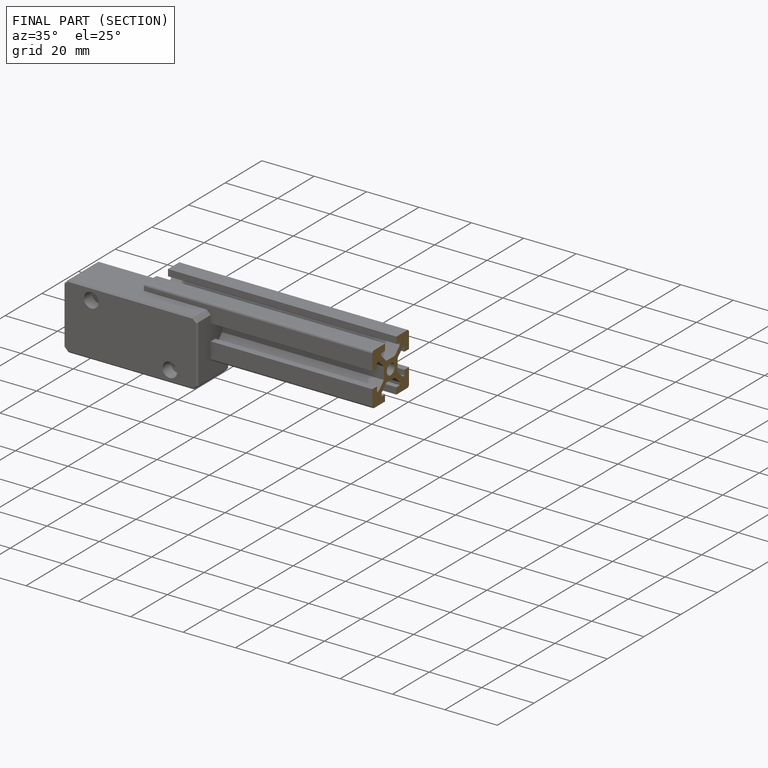
[diagram: finished part — half-section view (interior)]
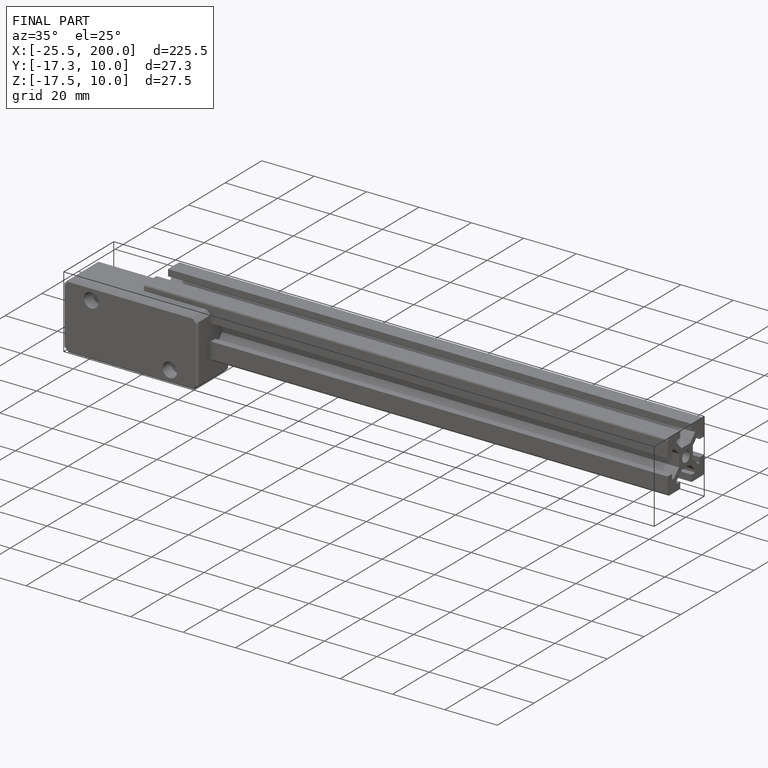
[diagram: finished part — iso view with bounding-box wireframe]
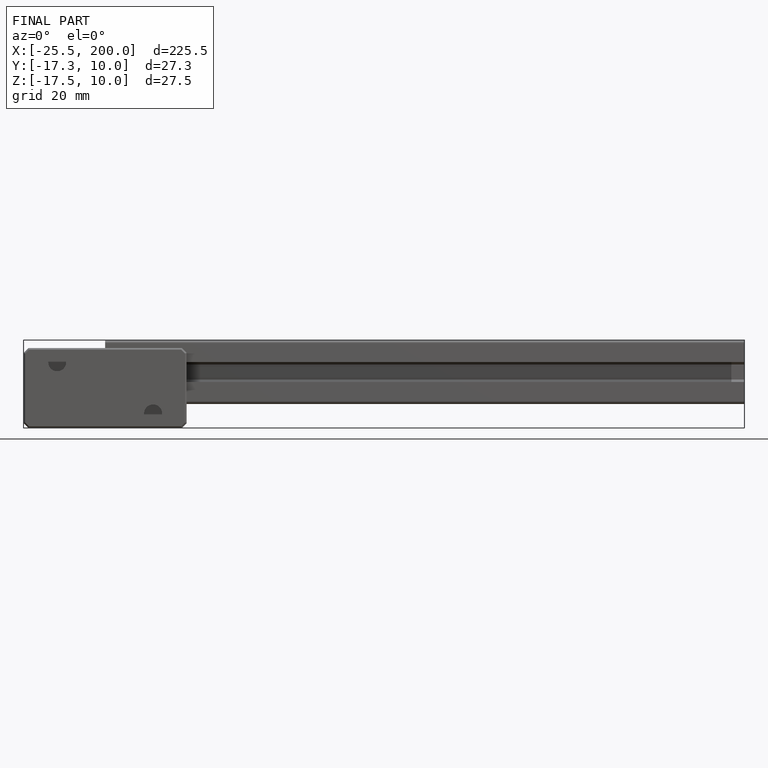
[diagram: finished part — front view with bounding-box wireframe]
